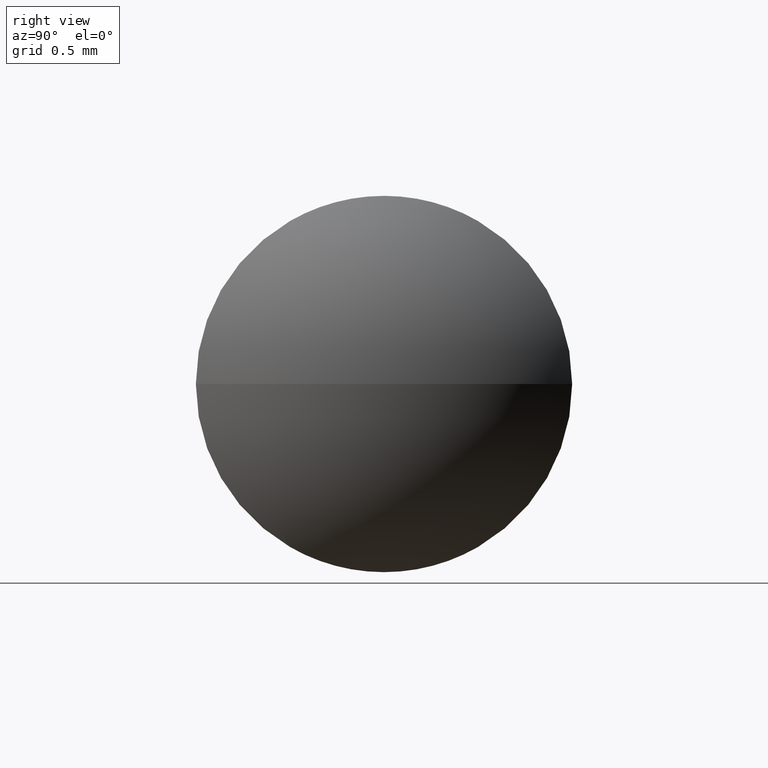
[diagram: clean part render]
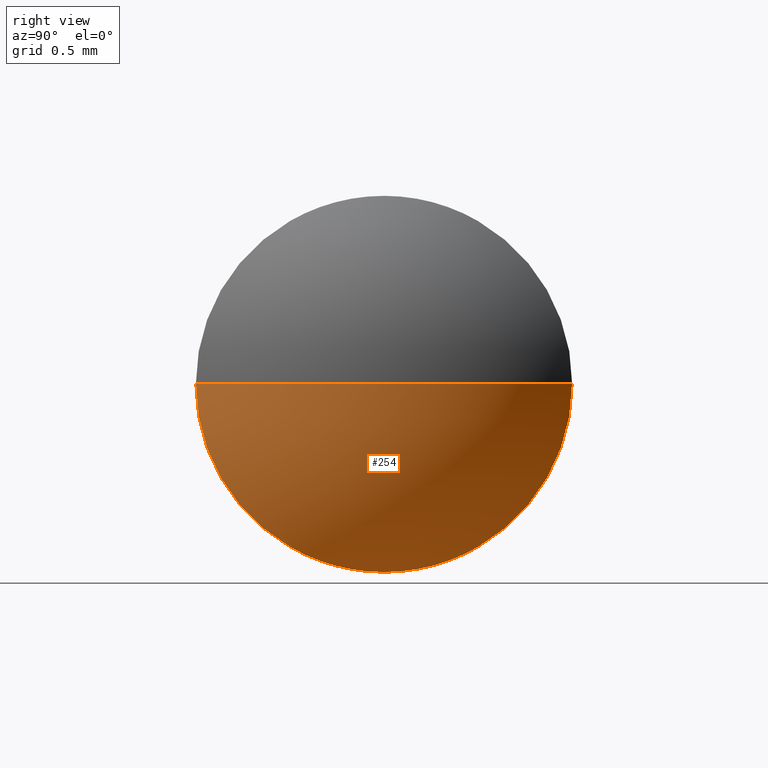
[diagram: same view with one face highlighted and labeled with its STEP entity id]
A machine part, right view. The second image highlights one B-rep face of the part: STEP entity #254.
In plain terms, the highlighted spherical surface has radius 2 mm.
Its self-contained STEP definition (entity closure, byte-faithful):
#7 = CIRCLE ( 'NONE', #316, 2.000000000000001800 ) ;
#11 = CIRCLE ( 'NONE', #92, 1.500000000000029100 ) ;
#14 = VERTEX_POINT ( 'NONE', #214 ) ;
#25 = CARTESIAN_POINT ( 'NONE',  ( 231.6993485743448400, 133.3448637497280600, 0.0000000000000000000 ) ) ;
#40 = AXIS2_PLACEMENT_3D ( 'NONE', #105, #132, #184 ) ;
#57 = CARTESIAN_POINT ( 'NONE',  ( 229.6993485743448400, 133.3448637497280600, 0.0000000000000000000 ) ) ;
#60 = CARTESIAN_POINT ( 'NONE',  ( 229.6993485743448400, 133.3448637497280600, 0.0000000000000000000 ) ) ;
#62 = DIRECTION ( 'NONE',  ( 0.0000000000000000000, 1.000000000000000000, 1.224646799147347500E-016 ) ) ;
#63 = ORIENTED_EDGE ( 'NONE', *, *, #218, .F. ) ;
#71 = ORIENTED_EDGE ( 'NONE', *, *, #284, .F. ) ;
#75 = CIRCLE ( 'NONE', #287, 2.000000000000001800 ) ;
#89 = CARTESIAN_POINT ( 'NONE',  ( 229.6993485743448400, 133.3448637497280600, 0.0000000000000000000 ) ) ;
#91 = DIRECTION ( 'NONE',  ( 0.0000000000000000000, 1.000000000000000000, 0.0000000000000000000 ) ) ;
#92 = AXIS2_PLACEMENT_3D ( 'NONE', #93, #277, #194 ) ;
#93 = CARTESIAN_POINT ( 'NONE',  ( 231.0222242298770800, 133.3448637497280600, 0.0000000000000000000 ) ) ;
#100 = AXIS2_PLACEMENT_3D ( 'NONE', #60, #142, #91 ) ;
#102 = VERTEX_POINT ( 'NONE', #25 ) ;
#105 = CARTESIAN_POINT ( 'NONE',  ( 231.0222242298770800, 133.3448637497280600, 0.0000000000000000000 ) ) ;
#116 = SPHERICAL_SURFACE ( 'NONE', #100, 1.999999999999992200 ) ;
#118 = DIRECTION ( 'NONE',  ( 1.000000000000000000, 0.0000000000000000000, 0.0000000000000000000 ) ) ;
#132 = DIRECTION ( 'NONE',  ( -1.000000000000000000, -0.0000000000000000000, -0.0000000000000000000 ) ) ;
#138 = CARTESIAN_POINT ( 'NONE',  ( 231.0222242298770800, 133.3448637497280600, -1.500000000000029300 ) ) ;
#142 = DIRECTION ( 'NONE',  ( -0.0000000000000000000, 0.0000000000000000000, -1.000000000000000000 ) ) ;
#167 = CARTESIAN_POINT ( 'NONE',  ( 231.0222242298770800, 131.8448637497280300, -1.836970198721071100E-016 ) ) ;
#179 = EDGE_LOOP ( 'NONE', ( #333, #209, #63, #71 ) ) ;
#184 = DIRECTION ( 'NONE',  ( 0.0000000000000000000, 0.0000000000000000000, 1.000000000000000000 ) ) ;
#194 = DIRECTION ( 'NONE',  ( 0.0000000000000000000, 0.0000000000000000000, 1.000000000000000000 ) ) ;
#209 = ORIENTED_EDGE ( 'NONE', *, *, #240, .T. ) ;
#211 = CIRCLE ( 'NONE', #40, 1.500000000000029100 ) ;
#214 = CARTESIAN_POINT ( 'NONE',  ( 231.0222242298770800, 134.8448637497280900, 0.0000000000000000000 ) ) ;
#218 = EDGE_CURVE ( 'NONE', #341, #315, #211, .T. ) ;
#240 = EDGE_CURVE ( 'NONE', #102, #315, #7, .T. ) ;
#254 = ADVANCED_FACE ( 'NONE', ( #344 ), #116, .T. ) ;
#271 = DIRECTION ( 'NONE',  ( -0.0000000000000000000, 0.0000000000000000000, 1.000000000000000000 ) ) ;
#275 = DIRECTION ( 'NONE',  ( 0.0000000000000000000, 1.224646799147353200E-016, -1.000000000000000000 ) ) ;
#277 = DIRECTION ( 'NONE',  ( -1.000000000000000000, -0.0000000000000000000, -0.0000000000000000000 ) ) ;
#284 = EDGE_CURVE ( 'NONE', #14, #341, #11, .T. ) ;
#287 = AXIS2_PLACEMENT_3D ( 'NONE', #89, #271, #118 ) ;
#315 = VERTEX_POINT ( 'NONE', #167 ) ;
#316 = AXIS2_PLACEMENT_3D ( 'NONE', #57, #275, #62 ) ;
#331 = EDGE_CURVE ( 'NONE', #102, #14, #75, .T. ) ;
#333 = ORIENTED_EDGE ( 'NONE', *, *, #331, .F. ) ;
#341 = VERTEX_POINT ( 'NONE', #138 ) ;
#344 = FACE_OUTER_BOUND ( 'NONE', #179, .T. ) ;